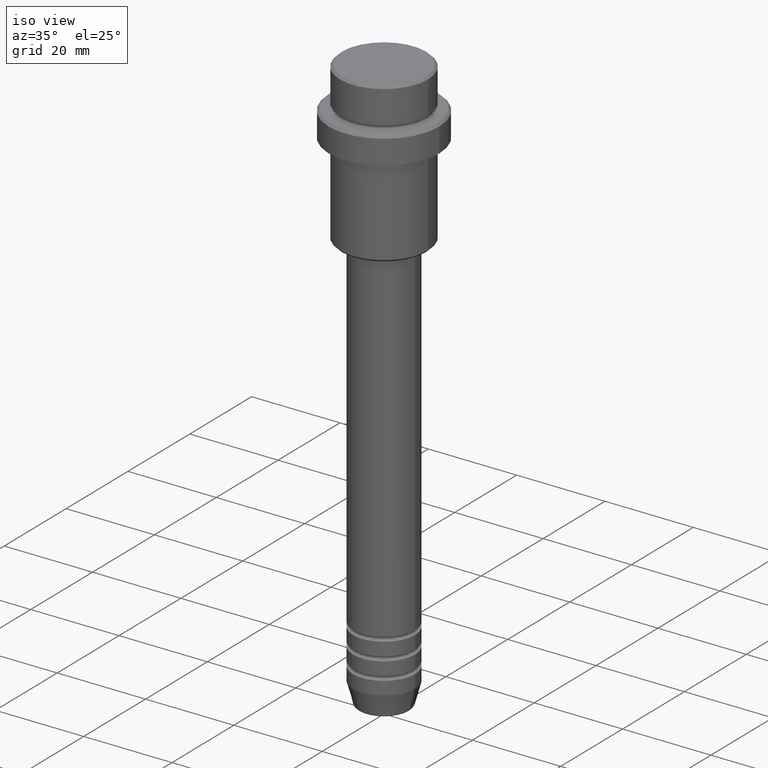
[diagram: clean part render]
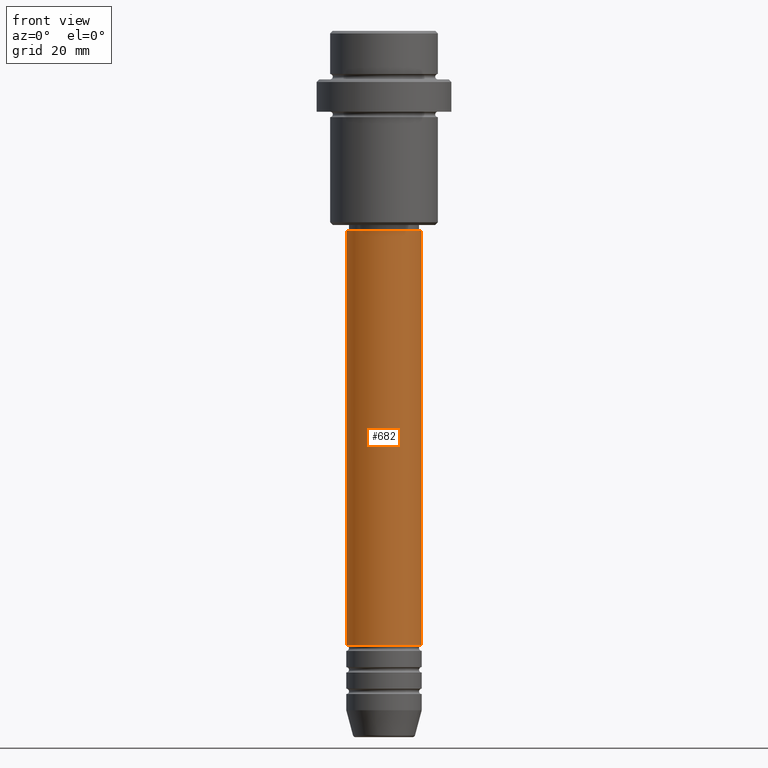
[diagram: tour spotlight — one face highlighted and labeled with its STEP entity id]
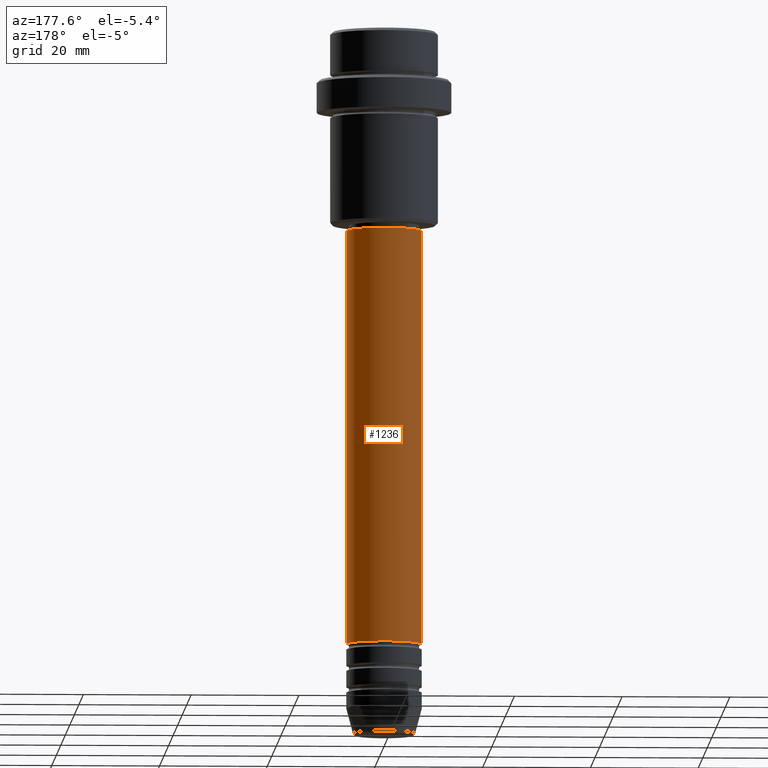
[diagram: tour spotlight — one face highlighted and labeled with its STEP entity id]
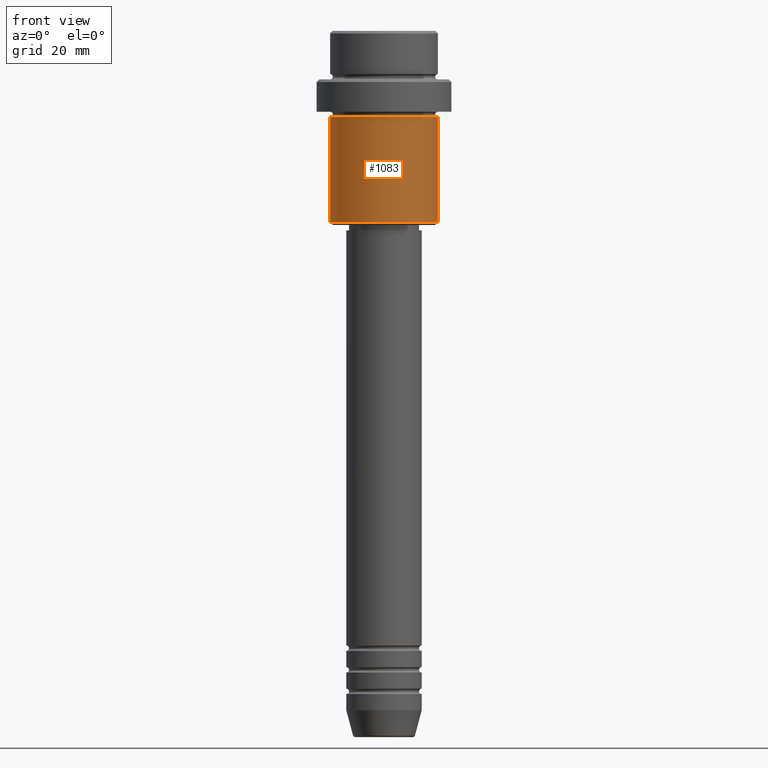
[diagram: tour spotlight — one face highlighted and labeled with its STEP entity id]
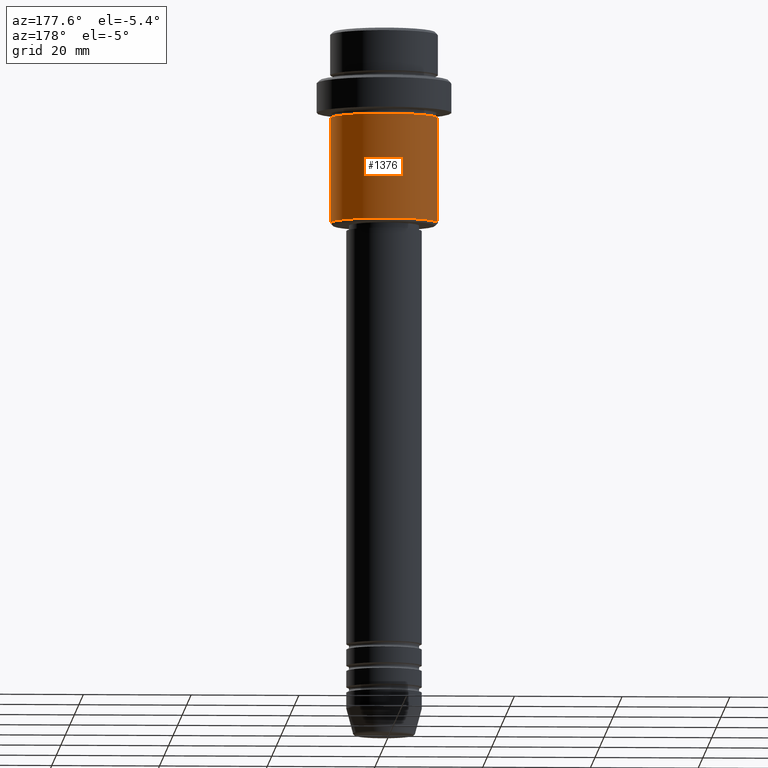
[diagram: tour spotlight — one face highlighted and labeled with its STEP entity id]
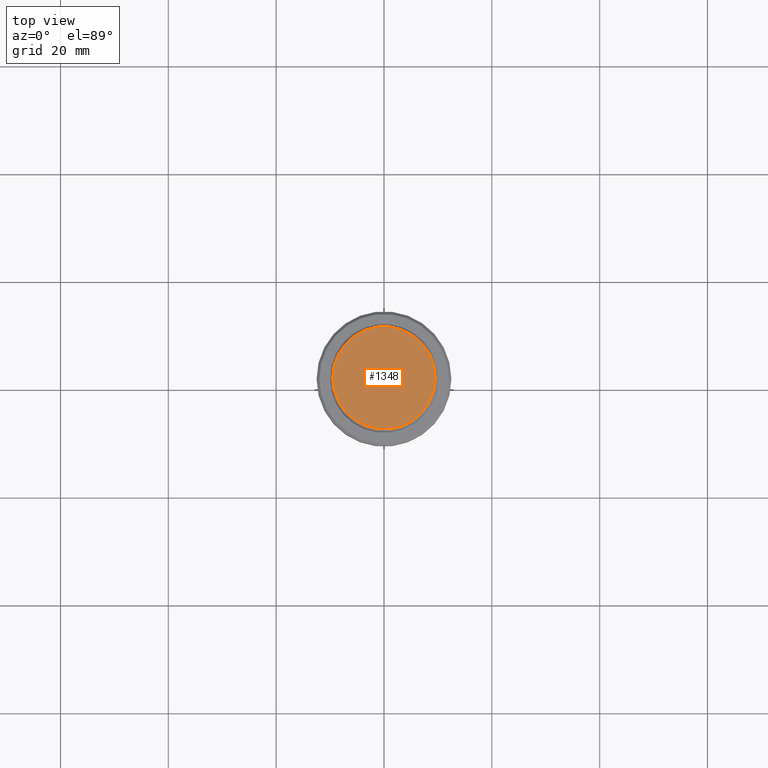
[diagram: tour spotlight — one face highlighted and labeled with its STEP entity id]
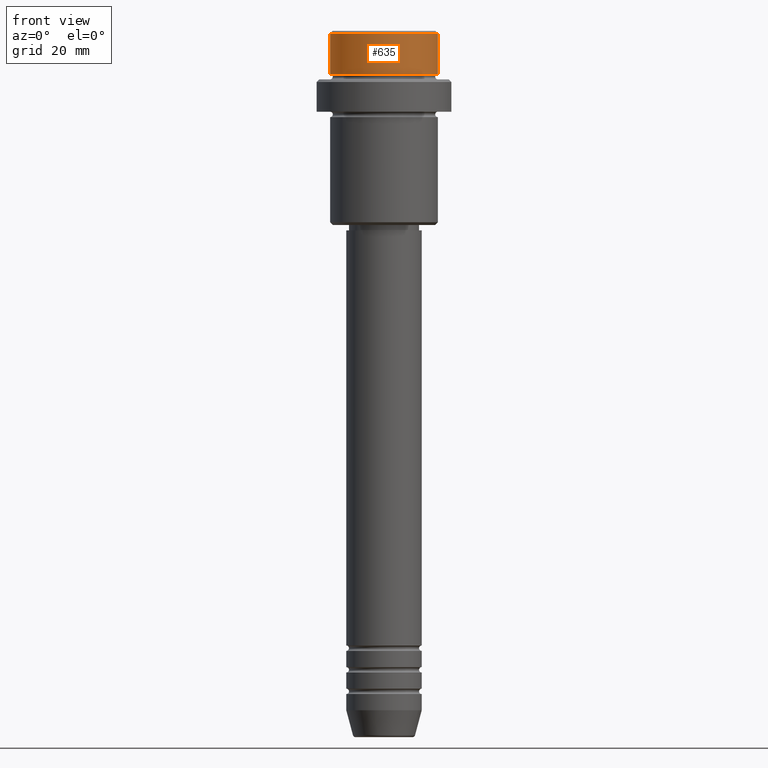
[diagram: tour spotlight — one face highlighted and labeled with its STEP entity id]
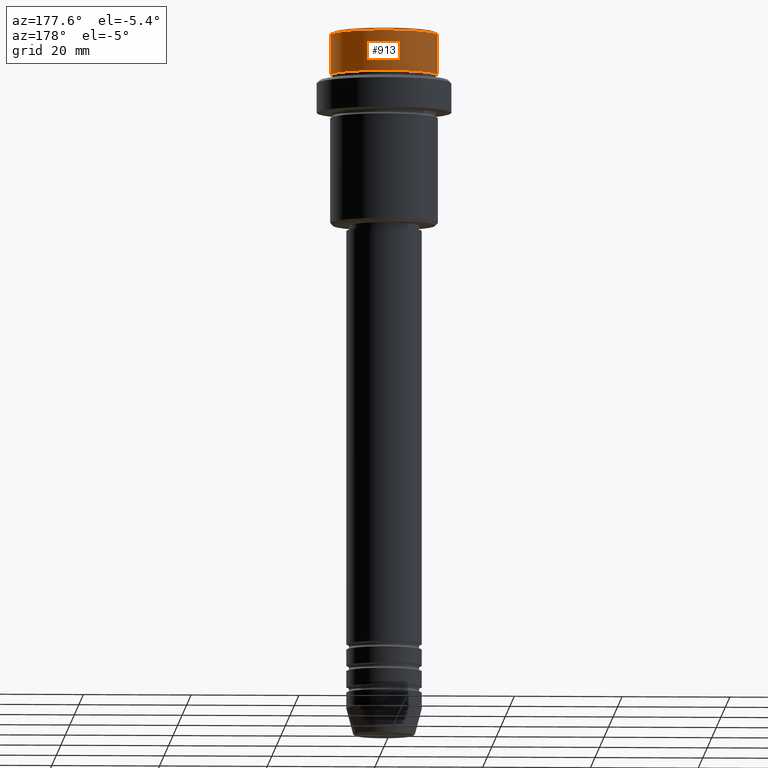
[diagram: tour spotlight — one face highlighted and labeled with its STEP entity id]
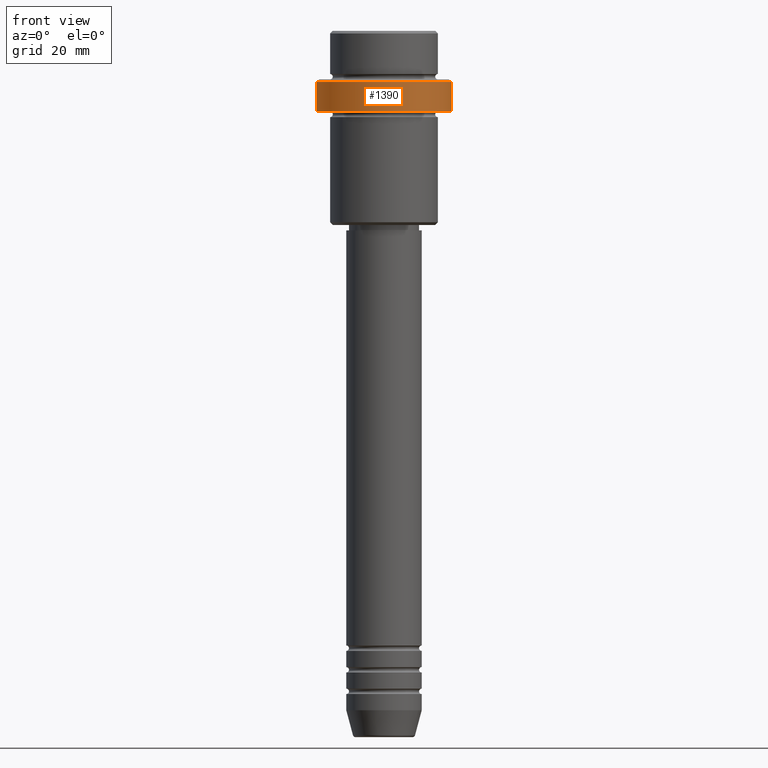
[diagram: tour spotlight — one face highlighted and labeled with its STEP entity id]
A machine part: a face-by-face anatomy tour. The part has 52 B-rep faces; the first image is the clean iso view, then the 8 largest visible faces are spotlighted one at a time (largest first), each with its STEP entity span.

Face 1 — front view, entity #682. In plain terms, the highlighted cylindrical surface (partial cylindrical patch) has radius 7 mm, axis along (-0, -0, 1).
Definition (entity closure, byte-faithful):
#21 = CARTESIAN_POINT ( 'NONE',  ( -7.000000000000000000, 8.572527594031473190E-16, 0.000000000000000000 ) ) ;
#68 = CYLINDRICAL_SURFACE ( 'NONE', #1357, 7.000000000000000000 ) ;
#88 = CARTESIAN_POINT ( 'NONE',  ( 0.000000000000000000, 0.000000000000000000, 0.000000000000000000 ) ) ;
#278 = AXIS2_PLACEMENT_3D ( 'NONE', #818, #1248, #385 ) ;
#284 = VERTEX_POINT ( 'NONE', #420 ) ;
#290 = FACE_OUTER_BOUND ( 'NONE', #815, .T. ) ;
#385 = DIRECTION ( 'NONE',  ( 1.000000000000000000, 0.000000000000000000, 0.000000000000000000 ) ) ;
#406 = EDGE_CURVE ( 'NONE', #284, #688, #1102, .T. ) ;
#417 = DIRECTION ( 'NONE',  ( 1.000000000000000000, 0.000000000000000000, 0.000000000000000000 ) ) ;
#420 = CARTESIAN_POINT ( 'NONE',  ( -7.000000000000000000, 8.572527594031473190E-16, -113.9999999999998863 ) ) ;
#446 = ORIENTED_EDGE ( 'NONE', *, *, #1417, .T. ) ;
#491 = DIRECTION ( 'NONE',  ( -0.000000000000000000, -0.000000000000000000, 1.000000000000000000 ) ) ;
#584 = EDGE_CURVE ( 'NONE', #284, #1242, #600, .T. ) ;
#600 = CIRCLE ( 'NONE', #278, 7.000000000000000000 ) ;
#625 = VECTOR ( 'NONE', #943, 1000.000000000000000 ) ;
#637 = VERTEX_POINT ( 'NONE', #837 ) ;
#654 = CARTESIAN_POINT ( 'NONE',  ( 7.000000000000000000, 0.000000000000000000, -113.9999999999998863 ) ) ;
#682 = ADVANCED_FACE ( 'NONE', ( #290 ), #68, .T. ) ;
#688 = VERTEX_POINT ( 'NONE', #1066 ) ;
#744 = CARTESIAN_POINT ( 'NONE',  ( 7.000000000000000000, 0.000000000000000000, 0.000000000000000000 ) ) ;
#815 = EDGE_LOOP ( 'NONE', ( #1245, #1160, #446, #1043 ) ) ;
#818 = CARTESIAN_POINT ( 'NONE',  ( 0.000000000000000000, 0.000000000000000000, -113.9999999999998863 ) ) ;
#819 = LINE ( 'NONE', #744, #625 ) ;
#837 = CARTESIAN_POINT ( 'NONE',  ( 7.000000000000000000, 0.000000000000000000, -36.99999999999997158 ) ) ;
#917 = CARTESIAN_POINT ( 'NONE',  ( 0.000000000000000000, 0.000000000000000000, -36.99999999999997158 ) ) ;
#943 = DIRECTION ( 'NONE',  ( -0.000000000000000000, -0.000000000000000000, 1.000000000000000000 ) ) ;
#968 = EDGE_CURVE ( 'NONE', #688, #637, #970, .T. ) ;
#970 = CIRCLE ( 'NONE', #1292, 7.000000000000000000 ) ;
#1024 = DIRECTION ( 'NONE',  ( 1.000000000000000000, 0.000000000000000000, 0.000000000000000000 ) ) ;
#1043 = ORIENTED_EDGE ( 'NONE', *, *, #968, .F. ) ;
#1066 = CARTESIAN_POINT ( 'NONE',  ( -7.000000000000000000, 8.572527594031473190E-16, -36.99999999999997158 ) ) ;
#1102 = LINE ( 'NONE', #21, #1128 ) ;
#1128 = VECTOR ( 'NONE', #1214, 1000.000000000000000 ) ;
#1160 = ORIENTED_EDGE ( 'NONE', *, *, #584, .T. ) ;
#1214 = DIRECTION ( 'NONE',  ( -0.000000000000000000, -0.000000000000000000, 1.000000000000000000 ) ) ;
#1242 = VERTEX_POINT ( 'NONE', #654 ) ;
#1245 = ORIENTED_EDGE ( 'NONE', *, *, #406, .F. ) ;
#1248 = DIRECTION ( 'NONE',  ( -0.000000000000000000, -0.000000000000000000, 1.000000000000000000 ) ) ;
#1292 = AXIS2_PLACEMENT_3D ( 'NONE', #917, #491, #1024 ) ;
#1357 = AXIS2_PLACEMENT_3D ( 'NONE', #88, #1410, #417 ) ;
#1410 = DIRECTION ( 'NONE',  ( -0.000000000000000000, -0.000000000000000000, 1.000000000000000000 ) ) ;
#1417 = EDGE_CURVE ( 'NONE', #1242, #637, #819, .T. ) ;

Face 2 — auxiliary view, entity #1236. In plain terms, the highlighted cylindrical surface (partial cylindrical patch) has radius 7 mm, axis along (-0, -0, 1).
Definition (entity closure, byte-faithful):
#21 = CARTESIAN_POINT ( 'NONE',  ( -7.000000000000000000, 8.572527594031473190E-16, 0.000000000000000000 ) ) ;
#33 = CIRCLE ( 'NONE', #1358, 7.000000000000000000 ) ;
#46 = DIRECTION ( 'NONE',  ( 1.000000000000000000, 0.000000000000000000, 0.000000000000000000 ) ) ;
#144 = CIRCLE ( 'NONE', #947, 7.000000000000000000 ) ;
#276 = ORIENTED_EDGE ( 'NONE', *, *, #915, .T. ) ;
#284 = VERTEX_POINT ( 'NONE', #420 ) ;
#325 = ORIENTED_EDGE ( 'NONE', *, *, #406, .T. ) ;
#340 = EDGE_LOOP ( 'NONE', ( #276, #325, #461, #1022 ) ) ;
#406 = EDGE_CURVE ( 'NONE', #284, #688, #1102, .T. ) ;
#420 = CARTESIAN_POINT ( 'NONE',  ( -7.000000000000000000, 8.572527594031473190E-16, -113.9999999999998863 ) ) ;
#457 = CYLINDRICAL_SURFACE ( 'NONE', #697, 7.000000000000000000 ) ;
#461 = ORIENTED_EDGE ( 'NONE', *, *, #1000, .F. ) ;
#553 = DIRECTION ( 'NONE',  ( -0.000000000000000000, -0.000000000000000000, 1.000000000000000000 ) ) ;
#603 = DIRECTION ( 'NONE',  ( -0.000000000000000000, -0.000000000000000000, 1.000000000000000000 ) ) ;
#625 = VECTOR ( 'NONE', #943, 1000.000000000000000 ) ;
#637 = VERTEX_POINT ( 'NONE', #837 ) ;
#654 = CARTESIAN_POINT ( 'NONE',  ( 7.000000000000000000, 0.000000000000000000, -113.9999999999998863 ) ) ;
#688 = VERTEX_POINT ( 'NONE', #1066 ) ;
#697 = AXIS2_PLACEMENT_3D ( 'NONE', #1305, #553, #1007 ) ;
#744 = CARTESIAN_POINT ( 'NONE',  ( 7.000000000000000000, 0.000000000000000000, 0.000000000000000000 ) ) ;
#782 = FACE_OUTER_BOUND ( 'NONE', #340, .T. ) ;
#812 = CARTESIAN_POINT ( 'NONE',  ( 0.000000000000000000, 0.000000000000000000, -113.9999999999998863 ) ) ;
#819 = LINE ( 'NONE', #744, #625 ) ;
#837 = CARTESIAN_POINT ( 'NONE',  ( 7.000000000000000000, 0.000000000000000000, -36.99999999999997158 ) ) ;
#915 = EDGE_CURVE ( 'NONE', #1242, #284, #33, .T. ) ;
#943 = DIRECTION ( 'NONE',  ( -0.000000000000000000, -0.000000000000000000, 1.000000000000000000 ) ) ;
#947 = AXIS2_PLACEMENT_3D ( 'NONE', #1346, #1368, #46 ) ;
#1000 = EDGE_CURVE ( 'NONE', #637, #688, #144, .T. ) ;
#1007 = DIRECTION ( 'NONE',  ( 1.000000000000000000, 0.000000000000000000, 0.000000000000000000 ) ) ;
#1022 = ORIENTED_EDGE ( 'NONE', *, *, #1417, .F. ) ;
#1035 = DIRECTION ( 'NONE',  ( 1.000000000000000000, 0.000000000000000000, 0.000000000000000000 ) ) ;
#1066 = CARTESIAN_POINT ( 'NONE',  ( -7.000000000000000000, 8.572527594031473190E-16, -36.99999999999997158 ) ) ;
#1102 = LINE ( 'NONE', #21, #1128 ) ;
#1128 = VECTOR ( 'NONE', #1214, 1000.000000000000000 ) ;
#1214 = DIRECTION ( 'NONE',  ( -0.000000000000000000, -0.000000000000000000, 1.000000000000000000 ) ) ;
#1236 = ADVANCED_FACE ( 'NONE', ( #782 ), #457, .T. ) ;
#1242 = VERTEX_POINT ( 'NONE', #654 ) ;
#1305 = CARTESIAN_POINT ( 'NONE',  ( 0.000000000000000000, 0.000000000000000000, 0.000000000000000000 ) ) ;
#1346 = CARTESIAN_POINT ( 'NONE',  ( 0.000000000000000000, 0.000000000000000000, -36.99999999999997158 ) ) ;
#1358 = AXIS2_PLACEMENT_3D ( 'NONE', #812, #603, #1035 ) ;
#1368 = DIRECTION ( 'NONE',  ( -0.000000000000000000, -0.000000000000000000, 1.000000000000000000 ) ) ;
#1417 = EDGE_CURVE ( 'NONE', #1242, #637, #819, .T. ) ;

Face 3 — front view, entity #1083. In plain terms, the highlighted cylindrical surface (partial cylindrical patch) has radius 10 mm, axis along (-0, -0, 1).
Definition (entity closure, byte-faithful):
#7 = CARTESIAN_POINT ( 'NONE',  ( 10.00000000000000000, 0.000000000000000000, -35.49999999999997868 ) ) ;
#11 = AXIS2_PLACEMENT_3D ( 'NONE', #855, #277, #71 ) ;
#62 = DIRECTION ( 'NONE',  ( -0.000000000000000000, -0.000000000000000000, 1.000000000000000000 ) ) ;
#71 = DIRECTION ( 'NONE',  ( 1.000000000000000000, 0.000000000000000000, 0.000000000000000000 ) ) ;
#111 = EDGE_CURVE ( 'NONE', #1029, #469, #413, .T. ) ;
#117 = EDGE_CURVE ( 'NONE', #1029, #748, #267, .T. ) ;
#162 = DIRECTION ( 'NONE',  ( -0.000000000000000000, -0.000000000000000000, 1.000000000000000000 ) ) ;
#191 = DIRECTION ( 'NONE',  ( -0.000000000000000000, -0.000000000000000000, 1.000000000000000000 ) ) ;
#195 = CARTESIAN_POINT ( 'NONE',  ( 10.00000000000000000, 0.000000000000000000, -16.00000000000000000 ) ) ;
#236 = ORIENTED_EDGE ( 'NONE', *, *, #111, .T. ) ;
#267 = LINE ( 'NONE', #607, #1127 ) ;
#277 = DIRECTION ( 'NONE',  ( -0.000000000000000000, -0.000000000000000000, 1.000000000000000000 ) ) ;
#317 = AXIS2_PLACEMENT_3D ( 'NONE', #820, #62, #1382 ) ;
#321 = VECTOR ( 'NONE', #871, 1000.000000000000000 ) ;
#403 = CARTESIAN_POINT ( 'NONE',  ( 0.000000000000000000, 0.000000000000000000, -16.00000000000000000 ) ) ;
#413 = CIRCLE ( 'NONE', #317, 10.00000000000000000 ) ;
#469 = VERTEX_POINT ( 'NONE', #7 ) ;
#607 = CARTESIAN_POINT ( 'NONE',  ( -10.00000000000000000, 1.224646799147353256E-15, 0.000000000000000000 ) ) ;
#617 = EDGE_CURVE ( 'NONE', #748, #1076, #921, .T. ) ;
#748 = VERTEX_POINT ( 'NONE', #1089 ) ;
#749 = DIRECTION ( 'NONE',  ( 1.000000000000000000, 0.000000000000000000, 0.000000000000000000 ) ) ;
#772 = LINE ( 'NONE', #1095, #321 ) ;
#786 = EDGE_CURVE ( 'NONE', #469, #1076, #772, .T. ) ;
#788 = AXIS2_PLACEMENT_3D ( 'NONE', #403, #191, #749 ) ;
#820 = CARTESIAN_POINT ( 'NONE',  ( 0.000000000000000000, 0.000000000000000000, -35.49999999999997868 ) ) ;
#840 = FACE_OUTER_BOUND ( 'NONE', #1125, .T. ) ;
#855 = CARTESIAN_POINT ( 'NONE',  ( 0.000000000000000000, 0.000000000000000000, 0.000000000000000000 ) ) ;
#871 = DIRECTION ( 'NONE',  ( -0.000000000000000000, -0.000000000000000000, 1.000000000000000000 ) ) ;
#921 = CIRCLE ( 'NONE', #788, 10.00000000000000000 ) ;
#1017 = CARTESIAN_POINT ( 'NONE',  ( -10.00000000000000000, 1.224646799147353256E-15, -35.49999999999997868 ) ) ;
#1029 = VERTEX_POINT ( 'NONE', #1017 ) ;
#1076 = VERTEX_POINT ( 'NONE', #195 ) ;
#1083 = ADVANCED_FACE ( 'NONE', ( #840 ), #1182, .T. ) ;
#1089 = CARTESIAN_POINT ( 'NONE',  ( -10.00000000000000000, 1.224646799147353256E-15, -16.00000000000000000 ) ) ;
#1095 = CARTESIAN_POINT ( 'NONE',  ( 10.00000000000000000, 0.000000000000000000, 0.000000000000000000 ) ) ;
#1125 = EDGE_LOOP ( 'NONE', ( #1193, #236, #1349, #1321 ) ) ;
#1127 = VECTOR ( 'NONE', #162, 1000.000000000000000 ) ;
#1182 = CYLINDRICAL_SURFACE ( 'NONE', #11, 10.00000000000000000 ) ;
#1193 = ORIENTED_EDGE ( 'NONE', *, *, #117, .F. ) ;
#1321 = ORIENTED_EDGE ( 'NONE', *, *, #617, .F. ) ;
#1349 = ORIENTED_EDGE ( 'NONE', *, *, #786, .T. ) ;
#1382 = DIRECTION ( 'NONE',  ( -1.000000000000000000, 0.000000000000000000, 0.000000000000000000 ) ) ;

Face 4 — auxiliary view, entity #1376. In plain terms, the highlighted cylindrical surface (partial cylindrical patch) has radius 10 mm, axis along (-0, -0, 1).
Definition (entity closure, byte-faithful):
#7 = CARTESIAN_POINT ( 'NONE',  ( 10.00000000000000000, 0.000000000000000000, -35.49999999999997868 ) ) ;
#32 = CARTESIAN_POINT ( 'NONE',  ( 0.000000000000000000, 0.000000000000000000, 0.000000000000000000 ) ) ;
#117 = EDGE_CURVE ( 'NONE', #1029, #748, #267, .T. ) ;
#122 = CIRCLE ( 'NONE', #646, 10.00000000000000000 ) ;
#162 = DIRECTION ( 'NONE',  ( -0.000000000000000000, -0.000000000000000000, 1.000000000000000000 ) ) ;
#195 = CARTESIAN_POINT ( 'NONE',  ( 10.00000000000000000, 0.000000000000000000, -16.00000000000000000 ) ) ;
#230 = AXIS2_PLACEMENT_3D ( 'NONE', #32, #895, #1336 ) ;
#267 = LINE ( 'NONE', #607, #1127 ) ;
#270 = EDGE_CURVE ( 'NONE', #1076, #748, #920, .T. ) ;
#291 = DIRECTION ( 'NONE',  ( -0.000000000000000000, -0.000000000000000000, 1.000000000000000000 ) ) ;
#321 = VECTOR ( 'NONE', #871, 1000.000000000000000 ) ;
#347 = EDGE_LOOP ( 'NONE', ( #1158, #668, #731, #823 ) ) ;
#375 = DIRECTION ( 'NONE',  ( -1.000000000000000000, 0.000000000000000000, 0.000000000000000000 ) ) ;
#469 = VERTEX_POINT ( 'NONE', #7 ) ;
#532 = AXIS2_PLACEMENT_3D ( 'NONE', #860, #291, #1402 ) ;
#566 = EDGE_CURVE ( 'NONE', #469, #1029, #122, .T. ) ;
#585 = DIRECTION ( 'NONE',  ( -0.000000000000000000, -0.000000000000000000, 1.000000000000000000 ) ) ;
#607 = CARTESIAN_POINT ( 'NONE',  ( -10.00000000000000000, 1.224646799147353256E-15, 0.000000000000000000 ) ) ;
#646 = AXIS2_PLACEMENT_3D ( 'NONE', #919, #585, #375 ) ;
#668 = ORIENTED_EDGE ( 'NONE', *, *, #117, .T. ) ;
#731 = ORIENTED_EDGE ( 'NONE', *, *, #270, .F. ) ;
#748 = VERTEX_POINT ( 'NONE', #1089 ) ;
#772 = LINE ( 'NONE', #1095, #321 ) ;
#786 = EDGE_CURVE ( 'NONE', #469, #1076, #772, .T. ) ;
#823 = ORIENTED_EDGE ( 'NONE', *, *, #786, .F. ) ;
#860 = CARTESIAN_POINT ( 'NONE',  ( 0.000000000000000000, 0.000000000000000000, -16.00000000000000000 ) ) ;
#871 = DIRECTION ( 'NONE',  ( -0.000000000000000000, -0.000000000000000000, 1.000000000000000000 ) ) ;
#895 = DIRECTION ( 'NONE',  ( -0.000000000000000000, -0.000000000000000000, 1.000000000000000000 ) ) ;
#919 = CARTESIAN_POINT ( 'NONE',  ( 0.000000000000000000, 0.000000000000000000, -35.49999999999997868 ) ) ;
#920 = CIRCLE ( 'NONE', #532, 10.00000000000000000 ) ;
#1012 = CYLINDRICAL_SURFACE ( 'NONE', #230, 10.00000000000000000 ) ;
#1017 = CARTESIAN_POINT ( 'NONE',  ( -10.00000000000000000, 1.224646799147353256E-15, -35.49999999999997868 ) ) ;
#1029 = VERTEX_POINT ( 'NONE', #1017 ) ;
#1076 = VERTEX_POINT ( 'NONE', #195 ) ;
#1089 = CARTESIAN_POINT ( 'NONE',  ( -10.00000000000000000, 1.224646799147353256E-15, -16.00000000000000000 ) ) ;
#1095 = CARTESIAN_POINT ( 'NONE',  ( 10.00000000000000000, 0.000000000000000000, 0.000000000000000000 ) ) ;
#1127 = VECTOR ( 'NONE', #162, 1000.000000000000000 ) ;
#1158 = ORIENTED_EDGE ( 'NONE', *, *, #566, .T. ) ;
#1232 = FACE_OUTER_BOUND ( 'NONE', #347, .T. ) ;
#1336 = DIRECTION ( 'NONE',  ( 1.000000000000000000, 0.000000000000000000, 0.000000000000000000 ) ) ;
#1376 = ADVANCED_FACE ( 'NONE', ( #1232 ), #1012, .T. ) ;
#1402 = DIRECTION ( 'NONE',  ( 1.000000000000000000, 0.000000000000000000, 0.000000000000000000 ) ) ;

Face 5 — top view, entity #1348. In plain terms, the highlighted planar face has unit normal (0, -0, 1).
Definition (entity closure, byte-faithful):
#59 = ORIENTED_EDGE ( 'NONE', *, *, #981, .T. ) ;
#90 = CARTESIAN_POINT ( 'NONE',  ( 0.000000000000000000, 0.000000000000000000, 0.000000000000000000 ) ) ;
#114 = DIRECTION ( 'NONE',  ( 1.000000000000000000, 0.000000000000000000, 0.000000000000000000 ) ) ;
#131 = FACE_OUTER_BOUND ( 'NONE', #1372, .T. ) ;
#253 = EDGE_CURVE ( 'NONE', #801, #986, #1015, .T. ) ;
#274 = AXIS2_PLACEMENT_3D ( 'NONE', #90, #527, #954 ) ;
#335 = CARTESIAN_POINT ( 'NONE',  ( 9.500000000000008882, 1.194030629168669864E-15, 0.000000000000000000 ) ) ;
#470 = CARTESIAN_POINT ( 'NONE',  ( -9.500000000000008882, 0.000000000000000000, 0.000000000000000000 ) ) ;
#527 = DIRECTION ( 'NONE',  ( -0.000000000000000000, -0.000000000000000000, 1.000000000000000000 ) ) ;
#528 = ORIENTED_EDGE ( 'NONE', *, *, #253, .T. ) ;
#761 = PLANE ( 'NONE',  #1042 ) ;
#801 = VERTEX_POINT ( 'NONE', #335 ) ;
#869 = DIRECTION ( 'NONE',  ( 0.000000000000000000, -0.000000000000000000, 1.000000000000000000 ) ) ;
#923 = CIRCLE ( 'NONE', #1379, 9.500000000000008882 ) ;
#954 = DIRECTION ( 'NONE',  ( 1.000000000000000000, 0.000000000000000000, 0.000000000000000000 ) ) ;
#976 = CARTESIAN_POINT ( 'NONE',  ( 0.000000000000000000, 0.000000000000000000, 0.000000000000000000 ) ) ;
#981 = EDGE_CURVE ( 'NONE', #986, #801, #923, .T. ) ;
#986 = VERTEX_POINT ( 'NONE', #470 ) ;
#1015 = CIRCLE ( 'NONE', #274, 9.500000000000008882 ) ;
#1030 = DIRECTION ( 'NONE',  ( 1.000000000000000000, 0.000000000000000000, 0.000000000000000000 ) ) ;
#1042 = AXIS2_PLACEMENT_3D ( 'NONE', #976, #869, #114 ) ;
#1139 = CARTESIAN_POINT ( 'NONE',  ( 0.000000000000000000, 0.000000000000000000, 0.000000000000000000 ) ) ;
#1240 = DIRECTION ( 'NONE',  ( -0.000000000000000000, -0.000000000000000000, 1.000000000000000000 ) ) ;
#1348 = ADVANCED_FACE ( 'NONE', ( #131 ), #761, .T. ) ;
#1372 = EDGE_LOOP ( 'NONE', ( #59, #528 ) ) ;
#1379 = AXIS2_PLACEMENT_3D ( 'NONE', #1139, #1240, #1030 ) ;

Face 6 — front view, entity #635. In plain terms, the highlighted cylindrical surface (partial cylindrical patch) has radius 10 mm, axis along (-0, -0, 1).
Definition (entity closure, byte-faithful):
#2 = VERTEX_POINT ( 'NONE', #224 ) ;
#64 = ORIENTED_EDGE ( 'NONE', *, *, #1381, .F. ) ;
#135 = ORIENTED_EDGE ( 'NONE', *, *, #529, .T. ) ;
#141 = VERTEX_POINT ( 'NONE', #1271 ) ;
#157 = ORIENTED_EDGE ( 'NONE', *, *, #287, .T. ) ;
#197 = DIRECTION ( 'NONE',  ( -0.000000000000000000, -0.000000000000000000, 1.000000000000000000 ) ) ;
#224 = CARTESIAN_POINT ( 'NONE',  ( 9.999999999999998224, 0.000000000000000000, -7.999999999999998224 ) ) ;
#226 = VERTEX_POINT ( 'NONE', #1072 ) ;
#287 = EDGE_CURVE ( 'NONE', #378, #2, #1222, .T. ) ;
#303 = LINE ( 'NONE', #727, #1060 ) ;
#313 = DIRECTION ( 'NONE',  ( 1.000000000000000000, 0.000000000000000000, 0.000000000000000000 ) ) ;
#349 = LINE ( 'NONE', #793, #1383 ) ;
#378 = VERTEX_POINT ( 'NONE', #462 ) ;
#397 = DIRECTION ( 'NONE',  ( 1.000000000000000000, 0.000000000000000000, 0.000000000000000000 ) ) ;
#462 = CARTESIAN_POINT ( 'NONE',  ( -9.999999999999998224, 1.224646799147353059E-15, -7.999999999999998224 ) ) ;
#529 = EDGE_CURVE ( 'NONE', #226, #141, #1337, .T. ) ;
#545 = DIRECTION ( 'NONE',  ( -0.000000000000000000, -0.000000000000000000, 1.000000000000000000 ) ) ;
#627 = CYLINDRICAL_SURFACE ( 'NONE', #831, 9.999999999999998224 ) ;
#628 = EDGE_CURVE ( 'NONE', #2, #226, #303, .T. ) ;
#629 = EDGE_LOOP ( 'NONE', ( #64, #157, #1296, #135 ) ) ;
#635 = ADVANCED_FACE ( 'NONE', ( #842 ), #627, .T. ) ;
#684 = DIRECTION ( 'NONE',  ( -0.000000000000000000, -0.000000000000000000, 1.000000000000000000 ) ) ;
#727 = CARTESIAN_POINT ( 'NONE',  ( 9.999999999999998224, 0.000000000000000000, 0.000000000000000000 ) ) ;
#793 = CARTESIAN_POINT ( 'NONE',  ( -9.999999999999998224, 1.224646799147353059E-15, 0.000000000000000000 ) ) ;
#831 = AXIS2_PLACEMENT_3D ( 'NONE', #939, #1377, #397 ) ;
#842 = FACE_OUTER_BOUND ( 'NONE', #629, .T. ) ;
#908 = DIRECTION ( 'NONE',  ( 0.000000000000000000, 0.000000000000000000, -1.000000000000000000 ) ) ;
#934 = CARTESIAN_POINT ( 'NONE',  ( 0.000000000000000000, 0.000000000000000000, -0.4999999999999831246 ) ) ;
#939 = CARTESIAN_POINT ( 'NONE',  ( 0.000000000000000000, 0.000000000000000000, 0.000000000000000000 ) ) ;
#959 = CARTESIAN_POINT ( 'NONE',  ( 0.000000000000000000, 0.000000000000000000, -7.999999999999998224 ) ) ;
#967 = AXIS2_PLACEMENT_3D ( 'NONE', #934, #908, #1140 ) ;
#1060 = VECTOR ( 'NONE', #197, 1000.000000000000000 ) ;
#1072 = CARTESIAN_POINT ( 'NONE',  ( 9.999999999999998224, 0.000000000000000000, -0.4999999999999831246 ) ) ;
#1140 = DIRECTION ( 'NONE',  ( 1.000000000000000000, 0.000000000000000000, 0.000000000000000000 ) ) ;
#1199 = AXIS2_PLACEMENT_3D ( 'NONE', #959, #545, #313 ) ;
#1222 = CIRCLE ( 'NONE', #1199, 9.999999999999998224 ) ;
#1271 = CARTESIAN_POINT ( 'NONE',  ( -9.999999999999998224, 1.224646799147353059E-15, -0.4999999999999831246 ) ) ;
#1296 = ORIENTED_EDGE ( 'NONE', *, *, #628, .T. ) ;
#1337 = CIRCLE ( 'NONE', #967, 9.999999999999998224 ) ;
#1377 = DIRECTION ( 'NONE',  ( -0.000000000000000000, -0.000000000000000000, 1.000000000000000000 ) ) ;
#1381 = EDGE_CURVE ( 'NONE', #378, #141, #349, .T. ) ;
#1383 = VECTOR ( 'NONE', #684, 1000.000000000000000 ) ;

Face 7 — auxiliary view, entity #913. In plain terms, the highlighted cylindrical surface (partial cylindrical patch) has radius 10 mm, axis along (-0, -0, 1).
Definition (entity closure, byte-faithful):
#2 = VERTEX_POINT ( 'NONE', #224 ) ;
#5 = DIRECTION ( 'NONE',  ( 1.000000000000000000, 0.000000000000000000, 0.000000000000000000 ) ) ;
#41 = CARTESIAN_POINT ( 'NONE',  ( 0.000000000000000000, 0.000000000000000000, -7.999999999999998224 ) ) ;
#141 = VERTEX_POINT ( 'NONE', #1271 ) ;
#159 = FACE_OUTER_BOUND ( 'NONE', #512, .T. ) ;
#197 = DIRECTION ( 'NONE',  ( -0.000000000000000000, -0.000000000000000000, 1.000000000000000000 ) ) ;
#224 = CARTESIAN_POINT ( 'NONE',  ( 9.999999999999998224, 0.000000000000000000, -7.999999999999998224 ) ) ;
#226 = VERTEX_POINT ( 'NONE', #1072 ) ;
#303 = LINE ( 'NONE', #727, #1060 ) ;
#349 = LINE ( 'NONE', #793, #1383 ) ;
#358 = CARTESIAN_POINT ( 'NONE',  ( 0.000000000000000000, 0.000000000000000000, 0.000000000000000000 ) ) ;
#378 = VERTEX_POINT ( 'NONE', #462 ) ;
#394 = AXIS2_PLACEMENT_3D ( 'NONE', #1331, #779, #5 ) ;
#462 = CARTESIAN_POINT ( 'NONE',  ( -9.999999999999998224, 1.224646799147353059E-15, -7.999999999999998224 ) ) ;
#512 = EDGE_LOOP ( 'NONE', ( #936, #784, #1097, #685 ) ) ;
#580 = CIRCLE ( 'NONE', #714, 9.999999999999998224 ) ;
#628 = EDGE_CURVE ( 'NONE', #2, #226, #303, .T. ) ;
#684 = DIRECTION ( 'NONE',  ( -0.000000000000000000, -0.000000000000000000, 1.000000000000000000 ) ) ;
#685 = ORIENTED_EDGE ( 'NONE', *, *, #628, .F. ) ;
#696 = AXIS2_PLACEMENT_3D ( 'NONE', #358, #804, #1363 ) ;
#708 = CYLINDRICAL_SURFACE ( 'NONE', #696, 9.999999999999998224 ) ;
#714 = AXIS2_PLACEMENT_3D ( 'NONE', #41, #1149, #799 ) ;
#727 = CARTESIAN_POINT ( 'NONE',  ( 9.999999999999998224, 0.000000000000000000, 0.000000000000000000 ) ) ;
#779 = DIRECTION ( 'NONE',  ( 0.000000000000000000, 0.000000000000000000, -1.000000000000000000 ) ) ;
#784 = ORIENTED_EDGE ( 'NONE', *, *, #1381, .T. ) ;
#793 = CARTESIAN_POINT ( 'NONE',  ( -9.999999999999998224, 1.224646799147353059E-15, 0.000000000000000000 ) ) ;
#799 = DIRECTION ( 'NONE',  ( 1.000000000000000000, 0.000000000000000000, 0.000000000000000000 ) ) ;
#804 = DIRECTION ( 'NONE',  ( -0.000000000000000000, -0.000000000000000000, 1.000000000000000000 ) ) ;
#817 = EDGE_CURVE ( 'NONE', #141, #226, #1111, .T. ) ;
#913 = ADVANCED_FACE ( 'NONE', ( #159 ), #708, .T. ) ;
#936 = ORIENTED_EDGE ( 'NONE', *, *, #978, .T. ) ;
#978 = EDGE_CURVE ( 'NONE', #2, #378, #580, .T. ) ;
#1060 = VECTOR ( 'NONE', #197, 1000.000000000000000 ) ;
#1072 = CARTESIAN_POINT ( 'NONE',  ( 9.999999999999998224, 0.000000000000000000, -0.4999999999999831246 ) ) ;
#1097 = ORIENTED_EDGE ( 'NONE', *, *, #817, .T. ) ;
#1111 = CIRCLE ( 'NONE', #394, 9.999999999999998224 ) ;
#1149 = DIRECTION ( 'NONE',  ( -0.000000000000000000, -0.000000000000000000, 1.000000000000000000 ) ) ;
#1271 = CARTESIAN_POINT ( 'NONE',  ( -9.999999999999998224, 1.224646799147353059E-15, -0.4999999999999831246 ) ) ;
#1331 = CARTESIAN_POINT ( 'NONE',  ( 0.000000000000000000, 0.000000000000000000, -0.4999999999999831246 ) ) ;
#1363 = DIRECTION ( 'NONE',  ( 1.000000000000000000, 0.000000000000000000, 0.000000000000000000 ) ) ;
#1381 = EDGE_CURVE ( 'NONE', #378, #141, #349, .T. ) ;
#1383 = VECTOR ( 'NONE', #684, 1000.000000000000000 ) ;

Face 8 — front view, entity #1390. In plain terms, the highlighted cylindrical surface (partial cylindrical patch) has radius 12.5 mm, axis along (-0, -0, 1).
Definition (entity closure, byte-faithful):
#38 = EDGE_CURVE ( 'NONE', #706, #767, #1150, .T. ) ;
#61 = CYLINDRICAL_SURFACE ( 'NONE', #883, 12.50000000000000000 ) ;
#63 = EDGE_CURVE ( 'NONE', #706, #1397, #695, .T. ) ;
#105 = DIRECTION ( 'NONE',  ( 1.000000000000000000, 0.000000000000000000, 0.000000000000000000 ) ) ;
#106 = ORIENTED_EDGE ( 'NONE', *, *, #988, .T. ) ;
#132 = VERTEX_POINT ( 'NONE', #1047 ) ;
#136 = FACE_OUTER_BOUND ( 'NONE', #1299, .T. ) ;
#178 = DIRECTION ( 'NONE',  ( -0.000000000000000000, -0.000000000000000000, 1.000000000000000000 ) ) ;
#250 = AXIS2_PLACEMENT_3D ( 'NONE', #839, #592, #1052 ) ;
#285 = CARTESIAN_POINT ( 'NONE',  ( -12.50000000000000000, 1.530808498934191521E-15, -9.499999999999992895 ) ) ;
#314 = EDGE_CURVE ( 'NONE', #132, #1397, #760, .T. ) ;
#348 = VECTOR ( 'NONE', #379, 1000.000000000000000 ) ;
#364 = CARTESIAN_POINT ( 'NONE',  ( 12.50000000000000000, 0.000000000000000000, 0.000000000000000000 ) ) ;
#379 = DIRECTION ( 'NONE',  ( -0.000000000000000000, -0.000000000000000000, 1.000000000000000000 ) ) ;
#439 = CARTESIAN_POINT ( 'NONE',  ( 12.50000000000000000, 0.000000000000000000, -15.00000000000000178 ) ) ;
#483 = VECTOR ( 'NONE', #178, 1000.000000000000000 ) ;
#592 = DIRECTION ( 'NONE',  ( -0.000000000000000000, -0.000000000000000000, 1.000000000000000000 ) ) ;
#596 = DIRECTION ( 'NONE',  ( 1.000000000000000000, 0.000000000000000000, 0.000000000000000000 ) ) ;
#644 = AXIS2_PLACEMENT_3D ( 'NONE', #651, #1090, #105 ) ;
#651 = CARTESIAN_POINT ( 'NONE',  ( 0.000000000000000000, 0.000000000000000000, -9.499999999999992895 ) ) ;
#695 = LINE ( 'NONE', #1039, #483 ) ;
#706 = VERTEX_POINT ( 'NONE', #1056 ) ;
#760 = CIRCLE ( 'NONE', #644, 12.50000000000000000 ) ;
#767 = VERTEX_POINT ( 'NONE', #439 ) ;
#838 = DIRECTION ( 'NONE',  ( -0.000000000000000000, -0.000000000000000000, 1.000000000000000000 ) ) ;
#839 = CARTESIAN_POINT ( 'NONE',  ( 0.000000000000000000, 0.000000000000000000, -15.00000000000000178 ) ) ;
#883 = AXIS2_PLACEMENT_3D ( 'NONE', #1365, #838, #596 ) ;
#988 = EDGE_CURVE ( 'NONE', #767, #132, #1257, .T. ) ;
#995 = ORIENTED_EDGE ( 'NONE', *, *, #38, .T. ) ;
#1039 = CARTESIAN_POINT ( 'NONE',  ( -12.50000000000000000, 1.530808498934191521E-15, 0.000000000000000000 ) ) ;
#1047 = CARTESIAN_POINT ( 'NONE',  ( 12.50000000000000000, 0.000000000000000000, -9.499999999999992895 ) ) ;
#1052 = DIRECTION ( 'NONE',  ( 1.000000000000000000, 0.000000000000000000, 0.000000000000000000 ) ) ;
#1056 = CARTESIAN_POINT ( 'NONE',  ( -12.50000000000000000, 1.530808498934191521E-15, -15.00000000000000178 ) ) ;
#1090 = DIRECTION ( 'NONE',  ( 0.000000000000000000, 0.000000000000000000, -1.000000000000000000 ) ) ;
#1150 = CIRCLE ( 'NONE', #250, 12.50000000000000000 ) ;
#1239 = ORIENTED_EDGE ( 'NONE', *, *, #63, .F. ) ;
#1257 = LINE ( 'NONE', #364, #348 ) ;
#1299 = EDGE_LOOP ( 'NONE', ( #1239, #995, #106, #1304 ) ) ;
#1304 = ORIENTED_EDGE ( 'NONE', *, *, #314, .T. ) ;
#1365 = CARTESIAN_POINT ( 'NONE',  ( 0.000000000000000000, 0.000000000000000000, 0.000000000000000000 ) ) ;
#1390 = ADVANCED_FACE ( 'NONE', ( #136 ), #61, .T. ) ;
#1397 = VERTEX_POINT ( 'NONE', #285 ) ;